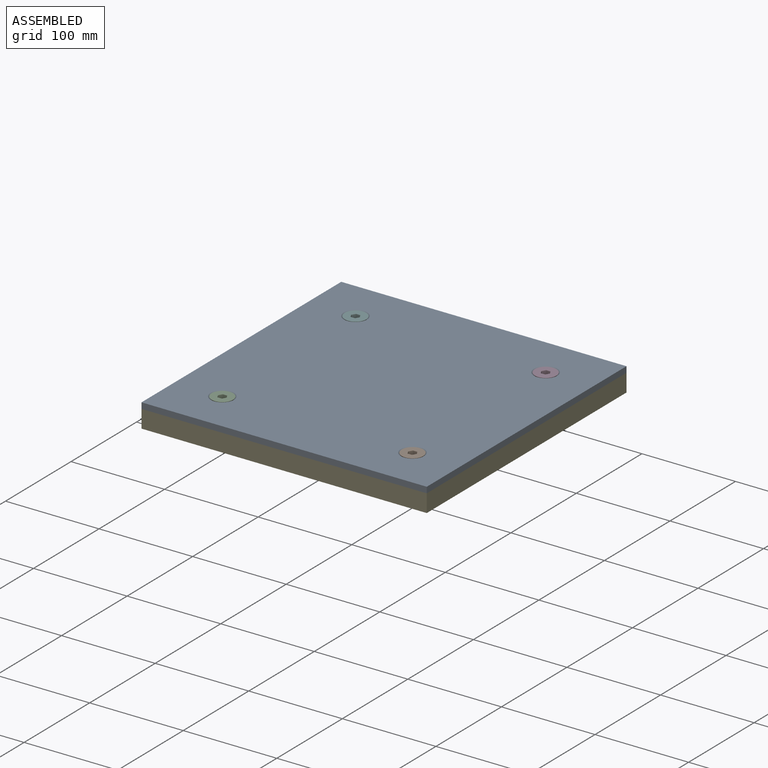
[diagram: assembled view]
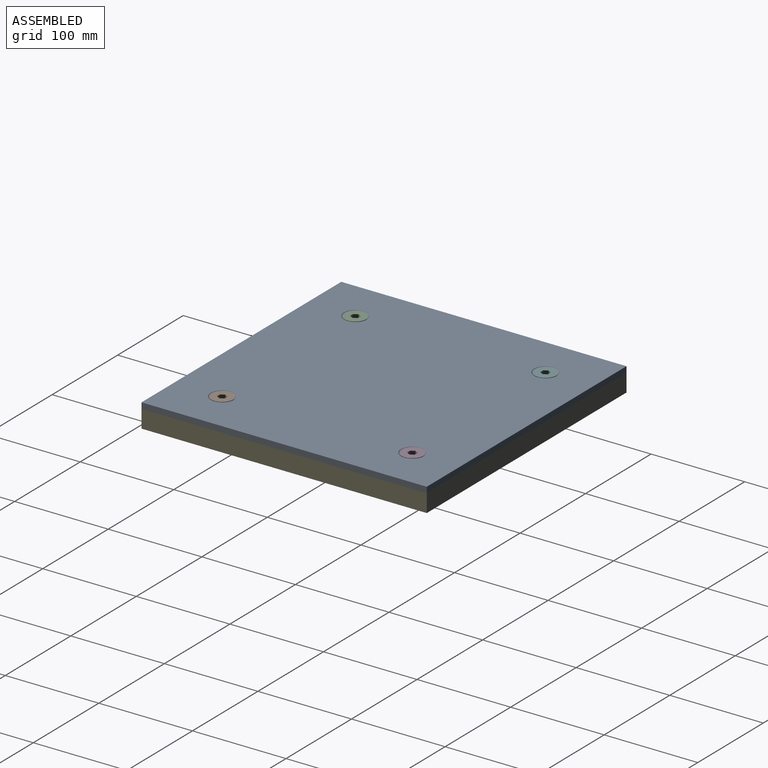
[diagram: assembled view, second angle]
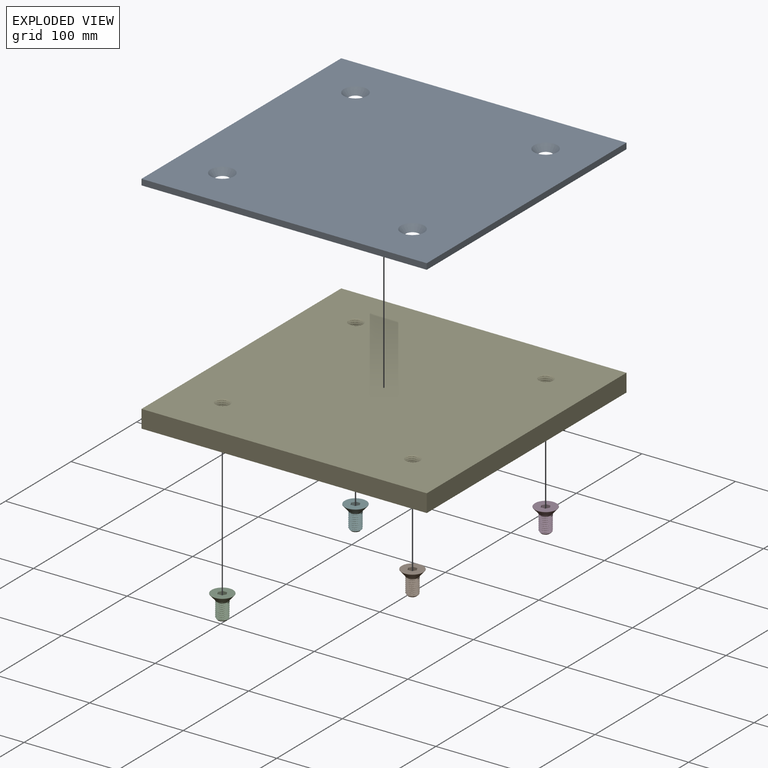
[diagram: exploded view]
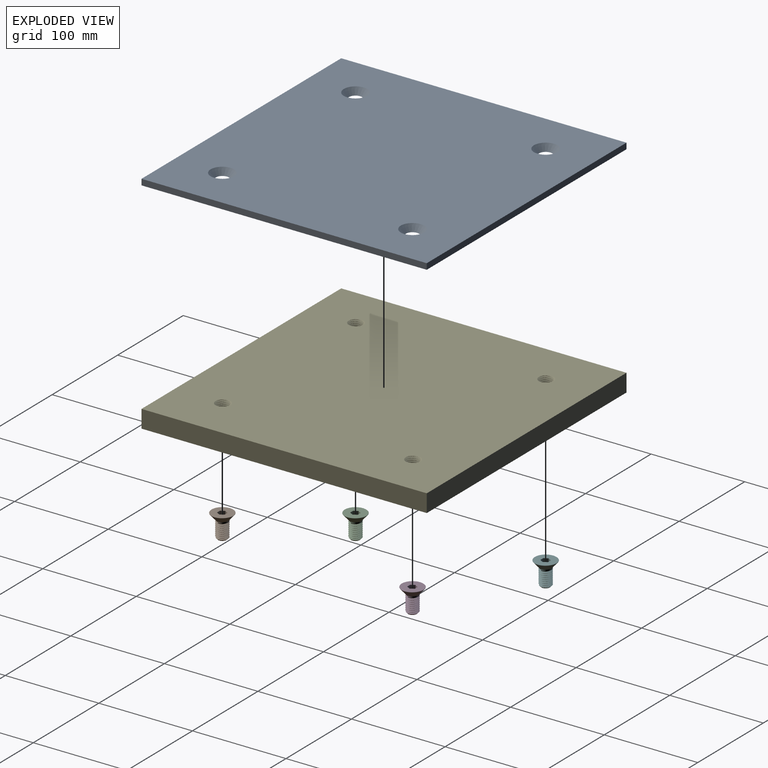
[diagram: exploded view, second angle]
ASSEMBLY  parts=6 mates=5
PART A: 10 faces, bbox 304.8x6.4x304.8 mm
  f0: plane 304.8x6.35mm, normal (1,0,0), area 1935.5mm2, adj f1,f3,f4,f5
  f1: plane 304.8x6.35mm, normal (0,0,1), area 1935.5mm2, adj f0,f2,f4,f5
  f2: plane 304.8x6.35mm, normal (-1,0,0), area 1935.5mm2, adj f1,f3,f4,f5
  f3: plane 304.8x6.35mm, normal (0,0,-1), area 1935.5mm2, adj f0,f2,f4,f5
  f4: plane 304.8x304.8mm, normal (0,-1,0), area 90930mm2, adj f0,f1,f2,f3,f6,f7,f8,f9
  f5: plane 304.8x304.8mm, normal (0,1,0), area 92285.5mm2, adj f0,f1,f2,f3,f6,f7,f8,f9
  f6: cone r=7.01mm half-angle=41deg, axis (0,-1,0), area 516.5mm2, adj f4,f5
  f7: cone r=7.01mm half-angle=41deg, axis (0,-1,0), area 516.5mm2, adj f4,f5
  f8: cone r=7.01mm half-angle=41deg, axis (0,-1,0), area 516.5mm2, adj f4,f5
  f9: cone r=7.01mm half-angle=41deg, axis (0,-1,0), area 516.5mm2, adj f4,f5
PART B: 23 faces, bbox 26.4x25.1x25.1 mm
  f0: plane 22.67x22.67mm, normal (-1,0,0), area 341.8mm2, adj f1,f3,f11,f12,f13,f14,f15
  f1: torus R=11.33mm, axis (-1,0,0), area 42mm2, adj f0,f2
  f2: cone r=11.53mm half-angle=41deg, axis (-1,0,0), area 636.2mm2, adj f1
  f3: cylinder r=0.25mm len=4.35mm, axis (0,0.87,0.5), area 1.9mm2, adj f0,f4,f11,f15
  f4: plane 4.57x3.97mm, normal (0,-0.5,0.87), area 21mm2, adj f3,f5,f9,f10
  f5: plane 9.17x7.94mm, normal (-1,0,0), area 54.6mm2, adj f4,f6,f7,f8,f9,f10
  f6: plane 4.57x3.97mm, normal (0,-0.5,-0.87), area 21mm2, adj f5,f7,f10,f14
  f7: plane 4.57x3.97mm, normal (0,0.5,-0.87), area 21mm2, adj f5,f6,f8,f13
  f8: plane 4.58x4.57mm, normal (0,1,0), area 21mm2, adj f5,f7,f9,f12
  f9: plane 4.57x3.97mm, normal (0,0.5,0.87), area 21mm2, adj f4,f5,f8,f11
  f10: plane 4.58x4.57mm, normal (0,-1,0), area 21mm2, adj f4,f5,f6,f15
  f11: cylinder r=0.25mm len=4.35mm, axis (0,0.87,-0.5), area 1.9mm2, adj f0,f3,f9,f12
  f12: cylinder r=0.25mm len=4.88mm, axis (0,0,-1), area 1.9mm2, adj f0,f8,f11,f13
  f13: cylinder r=0.25mm len=4.35mm, axis (0,-0.87,-0.5), area 1.9mm2, adj f0,f7,f12,f14
  f14: cylinder r=0.25mm len=4.35mm, axis (0,-0.87,0.5), area 1.9mm2, adj f0,f6,f13,f15
  f15: cylinder r=0.25mm len=4.88mm, axis (0,0,1), area 1.9mm2, adj f0,f3,f10,f14
  f16: cylinder r=6.35mm len=17.07mm, axis (-1,0,0), area 25.1mm2, adj f17,f18,f19,f20,f21
  f17: bspline ~19.2x14.66mm, area 560.8mm2, adj f16,f18,f20,f21
  f18: plane 1.93x1.67mm, normal (0,1,0.08), area 1.6mm2, adj f16,f17,f20
  f19: cone r=11.53mm half-angle=41deg, axis (-1,0,0), area 193.1mm2, adj f16
  f20: bspline ~19.2x14.66mm, area 596.2mm2, adj f16,f17,f18,f21
  f21: cone r=6.35mm half-angle=45deg, axis (-1,0,0), area 50.8mm2, adj f16,f17,f20,f22
  f22: plane 8.79x8.79mm, normal (1,0,0), area 60.7mm2, adj f21
PART C: same geometry as B
PART D: same geometry as B
PART E: 18 faces, bbox 306.2x306.2x22.9 mm
  f0: plane 304.8x19.05mm, normal (0,1,0), area 5806.4mm2, adj f1,f7,f8,f9
  f1: plane 304.8x19.05mm, normal (-1,0,0), area 5806.4mm2, adj f0,f2,f8,f9
  f2: plane 304.8x19.05mm, normal (0,-1,0), area 5806.4mm2, adj f1,f7,f8,f9
  f3: cylinder r=7.01mm len=19.05mm, axis (0,0,-1), area -2.9mm2, adj f8,f9,f12,f13
  f4: cylinder r=7.01mm len=19.05mm, axis (0,0,-1), area -2.9mm2, adj f8,f9,f14,f15
  f5: cylinder r=7.01mm len=19.05mm, axis (0,0,-1), area -2.9mm2, adj f8,f9,f16,f17
  f6: cylinder r=7.01mm len=19.05mm, axis (0,0,-1), area -2.9mm2, adj f8,f9,f10,f11
  f7: plane 304.8x19.05mm, normal (1,0,0), area 5806.4mm2, adj f0,f2,f8,f9
  f8: plane 306.19x306.19mm, normal (0,0,1), area 92128.6mm2, adj f0,f1,f2,f3,f4,f5,f6,f7
  f9: plane 306.16x306.16mm, normal (0,0,-1), area 92129.4mm2, adj f0,f1,f2,f3,f4,f5,f6,f7
  f10: bspline ~21.16x20.05mm, area 929.1mm2, adj f6,f8,f9,f11
  f11: bspline ~21.48x20.05mm, area 928.9mm2, adj f6,f8,f9,f10
  f12: bspline ~21.16x20.05mm, area 929.1mm2, adj f3,f8,f9,f13
  f13: bspline ~21.48x20.05mm, area 928.9mm2, adj f3,f8,f9,f12
  f14: bspline ~21.16x20.05mm, area 929.1mm2, adj f4,f8,f9,f15
  f15: bspline ~21.48x20.05mm, area 928.9mm2, adj f4,f8,f9,f14
  f16: bspline ~21.16x20.05mm, area 929.1mm2, adj f5,f8,f9,f17
  f17: bspline ~21.48x20.05mm, area 928.9mm2, adj f5,f8,f9,f16
PART F: same geometry as B
PLACE A rot(axis=(-1,0,0),90deg) t=(5.52,303.38,7.87)mm
PLACE B rot(axis=(0.71,0,-0.71),180deg) t=(107.12,-103.02,58.32)mm
PLACE C rot(axis=(0.71,0,-0.71),180deg) t=(-96.08,-103.02,58.32)mm
PLACE D rot(axis=(0.71,0,-0.71),180deg) t=(107.12,100.18,58.32)mm
PLACE E t=(5.52,-1.41,-11.18)mm
PLACE F rot(axis=(0.71,0,-0.71),180deg) t=(-96.08,100.18,58.32)mm
MATE fastened A.f5 <-> E.f8  axis (0,0,-1) through (5.52,-1.42,7.87)mm
MATE fastened B.f1 <-> A.f8  axis (0,0,1) through (107.12,-103.02,7.87)mm
MATE fastened D.f1 <-> A.f7  axis (0,0,1) through (107.12,100.18,7.87)mm
MATE fastened F.f1 <-> A.f6  axis (0,0,1) through (-96.08,100.18,7.87)mm
MATE fastened C.f1 <-> A.f9  axis (0,0,1) through (-96.08,-103.02,7.87)mm
